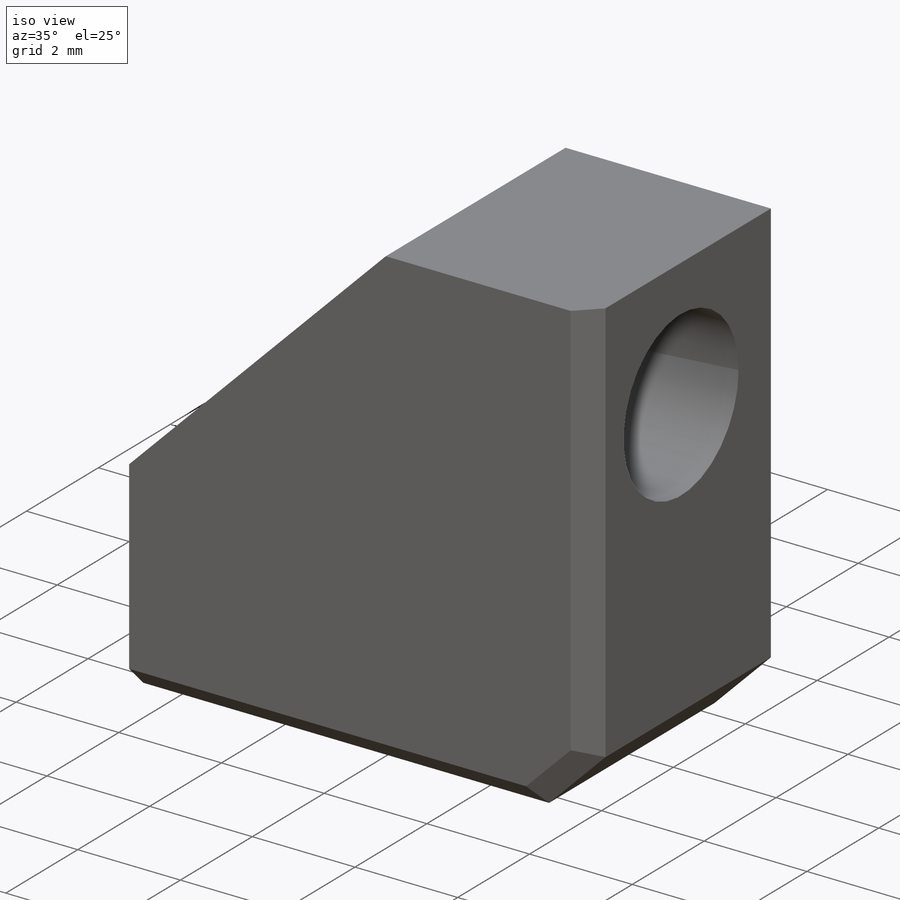
[diagram: iso view]
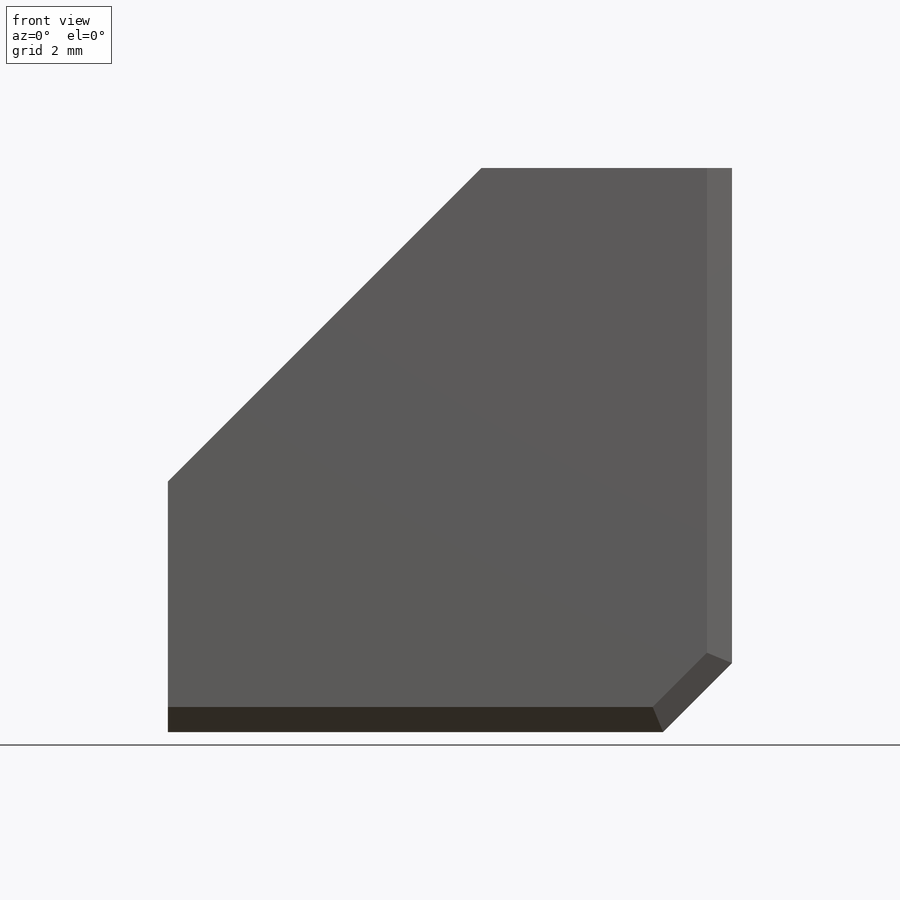
[diagram: front view]
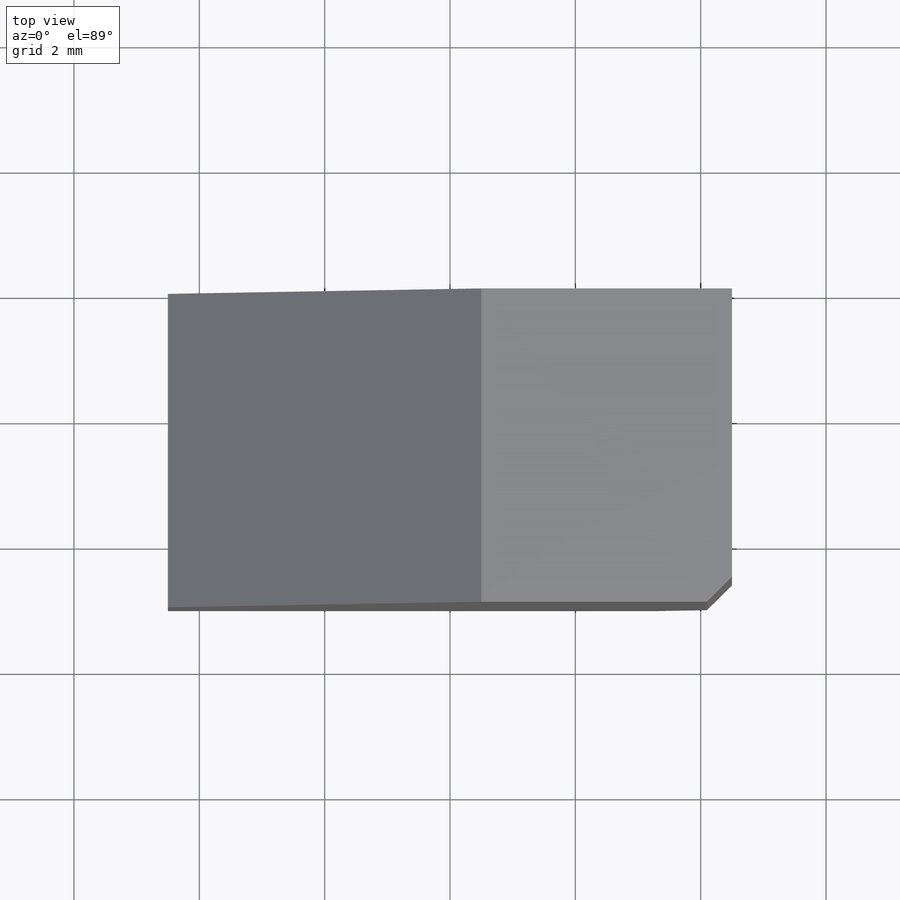
[diagram: top view]
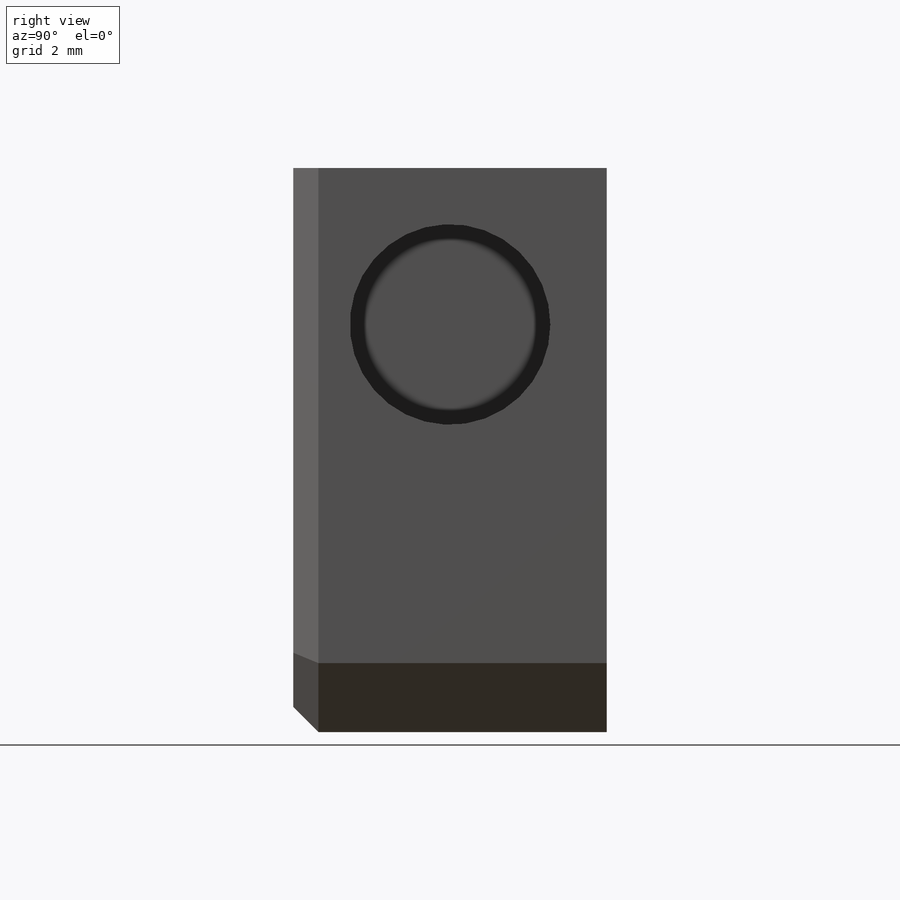
[diagram: right view]
SOLIDWORKS PART (.sldprt)
format: sldprt  version: not decoded by parser v0  size: 193,024 bytes
history: native  units: mm
features: sketch x4, cut_extrude x3, chamfer x3, material x1, extrude x1 (+13 scaffold rows collapsed)
feature tree (25):
  scaffold x13  (default folders/planes/origin — collapsed)
  material  "Material <not specified>"
  sketch  "Sketch1"  dims[D1=9.0mm D2=9.0mm]
  extrude  "Boss-Extrude1"  Depth=5mm
  sketch  "Sketch2"  dims[D1=3.2mm D2=2.5mm D3=2.5mm]
  cut_extrude  "Cut-Extrude1"  Depth=4.5mm
  sketch  "Sketch3"  dims[D1=3.2mm D2=2.5mm]
  cut_extrude  "Cut-Extrude2"  Depth=4.5mm
  sketch  "Sketch4"  dims[D1=3.2mm D2=2.5mm]
  cut_extrude  "Cut-Extrude3"  Depth=4.5mm
  chamfer  "Chamfer1"  Distance=1.1mm Angle=45deg
  chamfer  "Chamfer2"  Distance=5mm Angle=45deg
  chamfer  "Chamfer3"  Distance=0.4mm Angle=45deg
decode coverage: 11 of 11 modeling features carry decoded parameters
note: suppression state not decoded; provenance and decode notes live in map.json
